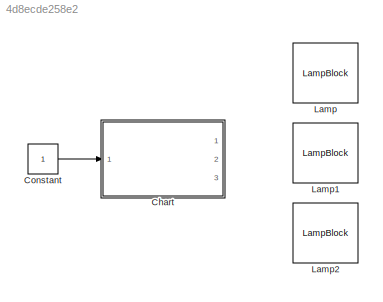
MODEL slx_4d8ecde258e2
KIND model
CONFIG AbsTol = auto
CONFIG EnableMultiTasking = off
CONFIG FixedStep = auto
CONFIG MaxStep = auto
CONFIG MinStep = auto
CONFIG RelTol = 1e-3
CONFIG SampleTimeConstraint = Unconstrained
CONFIG Solver = FixedStepDiscrete
CONFIG SolverName = FixedStepDiscrete
CONFIG StartTime = 0.0
CONFIG StopTime = 10.0
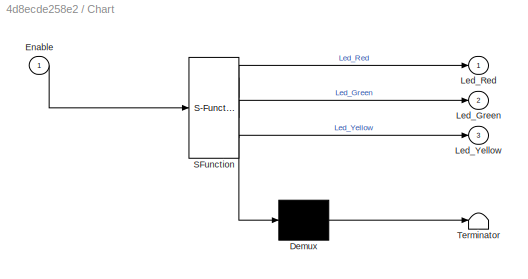
BLOCK [SubSystem] Chart
  ErrorFcn = Stateflow.Translate.translate
  PermitHierarchicalResolution = ExplicitOnly
  Ports = [1, 3]
  RequestExecContextInheritance = off
  SFBlockType = Chart
  TreatAsAtomicUnit = on
BLOCK [Demux] Chart/ Demux 
  Outputs = 1
  Ports = [1, 1]
BLOCK [S-Function] Chart/ SFunction 
  EnableBusSupport = on
  FunctionName = sf_sfun
  PortCounts = [1 4]
  Ports = [1, 4]
  SFcnIsStateOwnerBlock = off
  SFunctionDeploymentMode = off
  Tag = Stateflow S-Function Traffic_Light_StateFlow 3
BLOCK [Terminator] Chart/ Terminator 
BLOCK [Inport] Chart/Enable
  IconDisplay = Port number
BLOCK [Outport] Chart/Led_Green
  IconDisplay = Port number
  Port = 2
BLOCK [Outport] Chart/Led_Red
  IconDisplay = Port number
BLOCK [Outport] Chart/Led_Yellow
  IconDisplay = Port number
  Port = 3
BLOCK [Constant] Constant
  OutDataTypeStr = boolean
BLOCK [LampBlock] Lamp
  WebBlockId = 5
BLOCK [LampBlock] Lamp1
  WebBlockId = 8
BLOCK [LampBlock] Lamp2
  WebBlockId = 9
LINE Constant:1 -> Chart:1
CHART Chart states=5 transitions=9
  STATE_LABEL 'Traffic_Light'
  STATE_LABEL 'OFF'
  STATE_LABEL 'Red_ON\nen: %Enable RED_ON\nLed_Red=1;\nCounter=2;\ndu:\nafter(1,tick);\nCounter--;\nex:\nLed_Red=0;\n'
  STATE_LABEL 'Yellow_ON\nen: %Enable Yellow_ON\nLed_Yellow=1;\nCounter=2;\ndu:\nafter(1,tick);\nCounter--;\nex:\nLed_Yellow=0;\n'
  STATE_LABEL 'Green_ON\nen: %Enable Green_ON\nLed_Green=1;\nCounter=2;\ndu:\nafter(1,tick);\nCounter--;\nex:\nLed_Green=0;\n'
  STATE_LABEL '[Enable==1]'
  STATE_LABEL '[Enable==0]'
  STATE_LABEL '[Counter==0]'
  STATE_LABEL '[Enable==0]'
  STATE_LABEL '[Enable==0]'
  STATE_LABEL '[Counter==0]'
  STATE_LABEL '[Counter==0]'
  STATE_LABEL 'OFF'
  STATE_LABEL 'Red_ON\nen: %Enable RED_ON\nLed_Red=1;\nCounter=2;\ndu:\nafter(1,tick);\nCounter--;\nex:\nLed_Red=0;\n'
  STATE_LABEL 'Yellow_ON\nen: %Enable Yellow_ON\nLed_Yellow=1;\nCounter=2;\ndu:\nafter(1,tick);\nCounter--;\nex:\nLed_Yellow=0;\n'
  STATE_LABEL 'Green_ON\nen: %Enable Green_ON\nLed_Green=1;\nCounter=2;\ndu:\nafter(1,tick);\nCounter--;\nex:\nLed_Green=0;\n'
